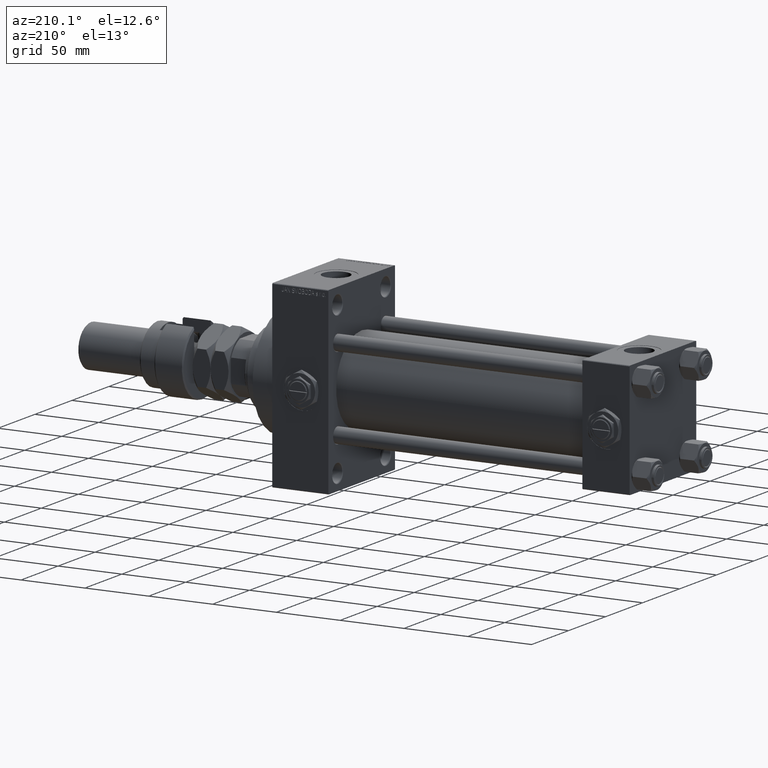
[diagram: clean part render]
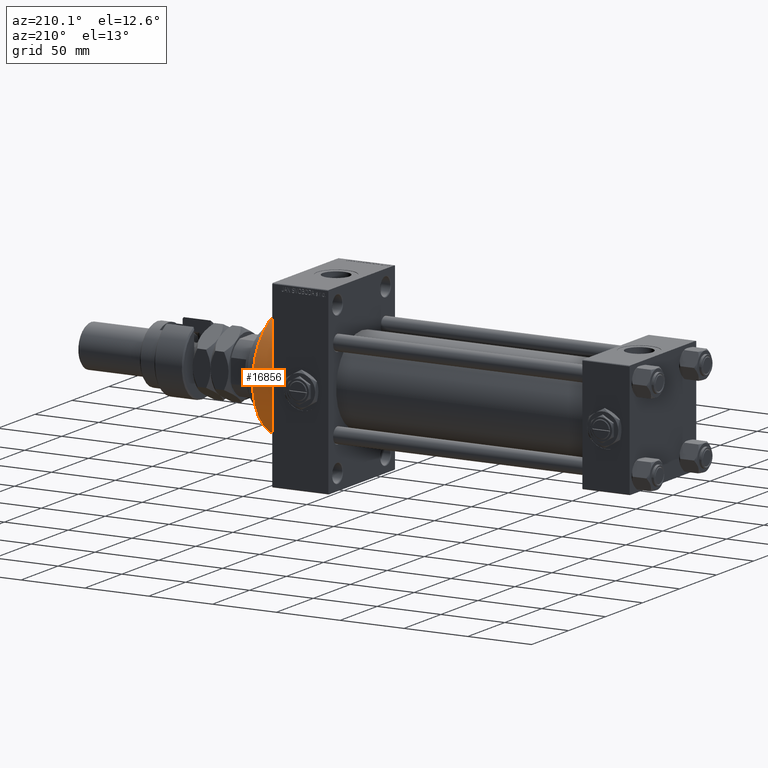
[diagram: same view with one face highlighted and labeled with its STEP entity id]
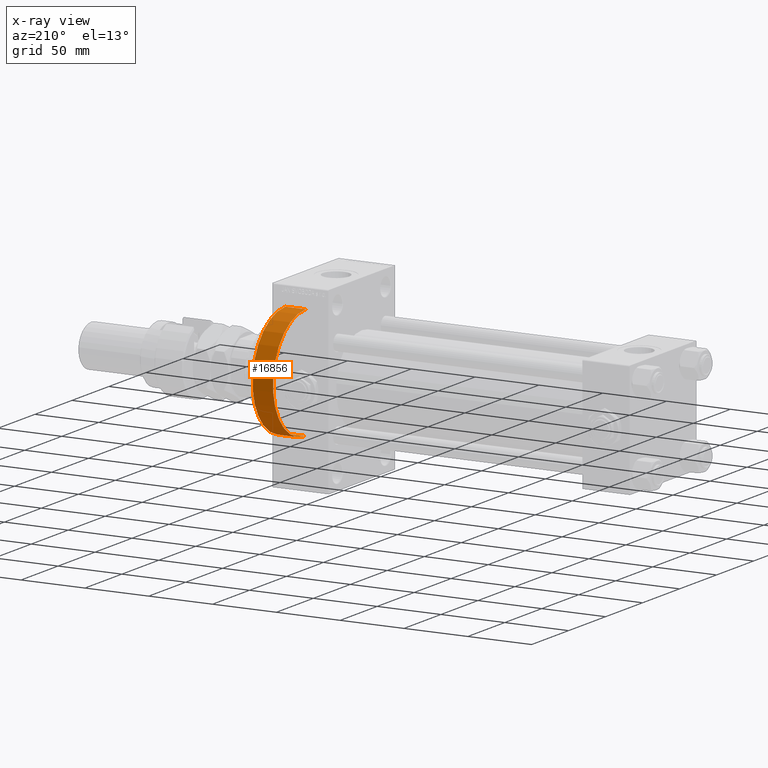
[diagram: x-ray of the same camera — body ghosted, the highlighted face saturated]
A machine part, auxiliary view. The second image highlights one B-rep face of the part: STEP entity #16856.
The next image is the same camera in x-ray: the body ghosted, the highlighted face saturated — about 1% of this face is hidden behind the body in this view.
In plain terms, the highlighted cylindrical surface (partial cylindrical patch) has radius 44 mm, axis along (-1, -0, -0).
Its self-contained STEP definition (entity closure, byte-faithful):
#146 = EDGE_CURVE ( 'NONE', #31166, #38332, #484, .T. ) ;
#484 = CIRCLE ( 'NONE', #36716, 44.00000000000000000 ) ;
#847 = CARTESIAN_POINT ( 'NONE',  ( 280.0000000000000000, 0.000000000000000000, 0.000000000000000000 ) ) ;
#1569 = CIRCLE ( 'NONE', #48720, 44.00000000000000000 ) ;
#1771 = CARTESIAN_POINT ( 'NONE',  ( 296.0000000000000568, 0.000000000000000000, 0.000000000000000000 ) ) ;
#3538 = EDGE_CURVE ( 'NONE', #31166, #36823, #23898, .T. ) ;
#4780 = CARTESIAN_POINT ( 'NONE',  ( 296.0000000000000568, 0.000000000000000000, 0.000000000000000000 ) ) ;
#5303 = DIRECTION ( 'NONE',  ( 0.000000000000000000, 0.000000000000000000, -1.000000000000000000 ) ) ;
#7471 = CARTESIAN_POINT ( 'NONE',  ( 280.0000000000000000, 5.388445916248353619E-15, -44.00000000000000000 ) ) ;
#12976 = DIRECTION ( 'NONE',  ( 0.000000000000000000, 0.000000000000000000, 1.000000000000000000 ) ) ;
#16856 = ADVANCED_FACE ( 'NONE', ( #23545 ), #31718, .T. ) ;
#17864 = DIRECTION ( 'NONE',  ( 1.000000000000000000, 0.000000000000000000, 0.000000000000000000 ) ) ;
#18669 = CARTESIAN_POINT ( 'NONE',  ( 296.0000000000000568, 5.388445916248353619E-15, -44.00000000000000000 ) ) ;
#19547 = VERTEX_POINT ( 'NONE', #23825 ) ;
#19685 = CARTESIAN_POINT ( 'NONE',  ( 296.0000000000000568, 5.388445916248353619E-15, -44.00000000000000000 ) ) ;
#21147 = DIRECTION ( 'NONE',  ( 1.000000000000000000, 0.000000000000000000, 0.000000000000000000 ) ) ;
#23198 = ORIENTED_EDGE ( 'NONE', *, *, #47566, .T. ) ;
#23545 = FACE_OUTER_BOUND ( 'NONE', #51651, .T. ) ;
#23825 = CARTESIAN_POINT ( 'NONE',  ( 280.0000000000000000, 0.000000000000000000, 44.00000000000000000 ) ) ;
#23898 = LINE ( 'NONE', #19685, #42744 ) ;
#30606 = CARTESIAN_POINT ( 'NONE',  ( 296.0000000000000568, 0.000000000000000000, 44.00000000000000000 ) ) ;
#31166 = VERTEX_POINT ( 'NONE', #18669 ) ;
#31632 = LINE ( 'NONE', #39563, #43518 ) ;
#31718 = CYLINDRICAL_SURFACE ( 'NONE', #51060, 44.00000000000000000 ) ;
#32734 = ORIENTED_EDGE ( 'NONE', *, *, #3538, .T. ) ;
#36716 = AXIS2_PLACEMENT_3D ( 'NONE', #1771, #17864, #50053 ) ;
#36823 = VERTEX_POINT ( 'NONE', #7471 ) ;
#38332 = VERTEX_POINT ( 'NONE', #30606 ) ;
#39563 = CARTESIAN_POINT ( 'NONE',  ( 296.0000000000000568, 0.000000000000000000, 44.00000000000000000 ) ) ;
#40663 = DIRECTION ( 'NONE',  ( -1.000000000000000000, -0.000000000000000000, -0.000000000000000000 ) ) ;
#42744 = VECTOR ( 'NONE', #43962, 1000.000000000000000 ) ;
#43039 = ORIENTED_EDGE ( 'NONE', *, *, #43637, .F. ) ;
#43249 = DIRECTION ( 'NONE',  ( -1.000000000000000000, -0.000000000000000000, -0.000000000000000000 ) ) ;
#43518 = VECTOR ( 'NONE', #43249, 1000.000000000000000 ) ;
#43637 = EDGE_CURVE ( 'NONE', #38332, #19547, #31632, .T. ) ;
#43962 = DIRECTION ( 'NONE',  ( -1.000000000000000000, -0.000000000000000000, -0.000000000000000000 ) ) ;
#47566 = EDGE_CURVE ( 'NONE', #36823, #19547, #1569, .T. ) ;
#47949 = ORIENTED_EDGE ( 'NONE', *, *, #146, .F. ) ;
#48720 = AXIS2_PLACEMENT_3D ( 'NONE', #847, #21147, #5303 ) ;
#50053 = DIRECTION ( 'NONE',  ( 0.000000000000000000, 0.000000000000000000, -1.000000000000000000 ) ) ;
#51060 = AXIS2_PLACEMENT_3D ( 'NONE', #4780, #40663, #12976 ) ;
#51651 = EDGE_LOOP ( 'NONE', ( #47949, #32734, #23198, #43039 ) ) ;